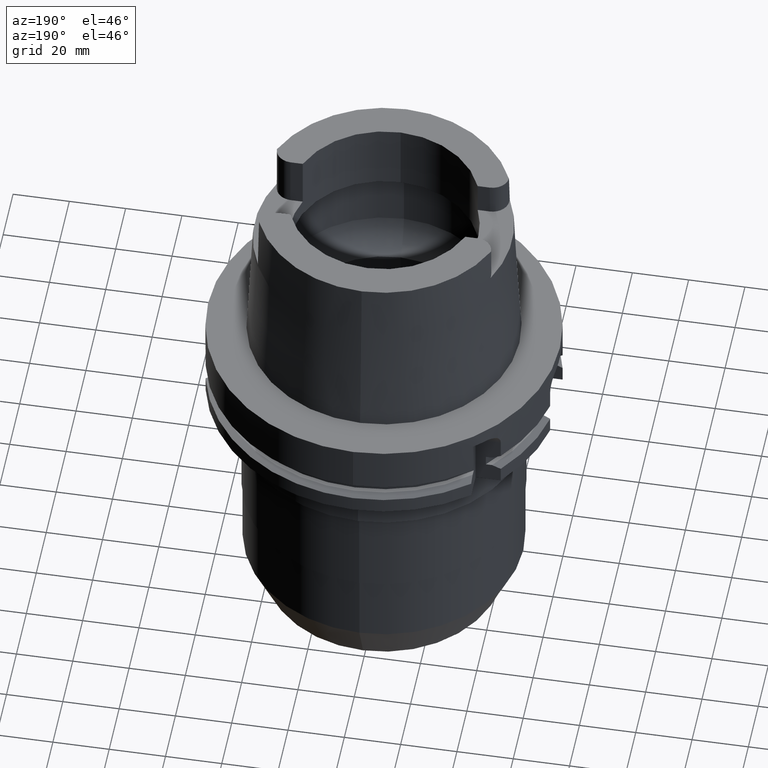
[diagram: clean part render]
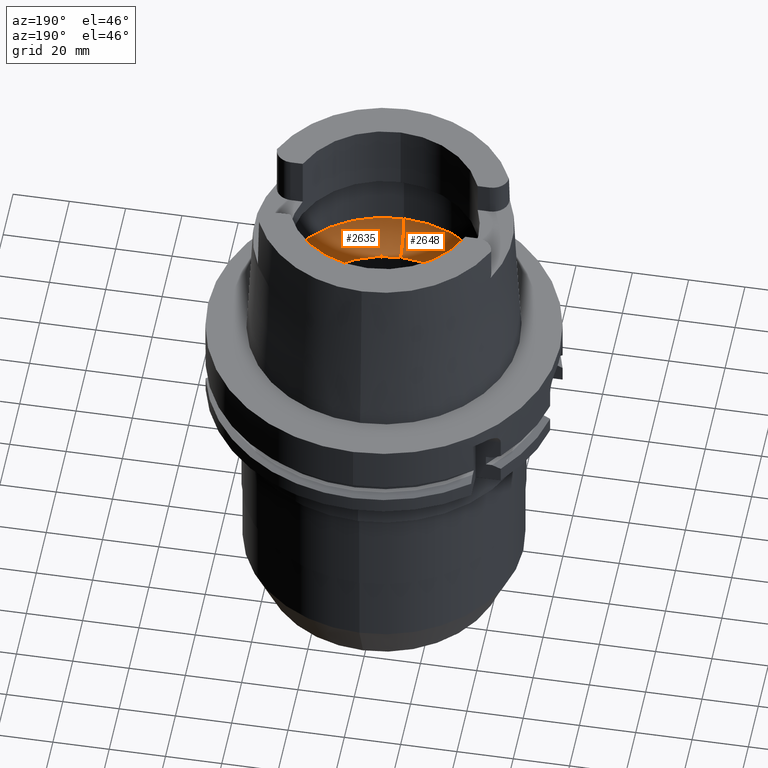
[diagram: same view with one multi-face feature highlighted, each face labeled with its STEP entity id]
A machine part, auxiliary view. The highlighted faces form ONE feature: a constant-radius fillet chain: 2 tangent blend faces with common blend radius 16 mm. The faces share edges in the B-rep.
Their STEP definitions:
[1] entity #2648 (Torus):
#459=CARTESIAN_POINT('',(0.E0,2.4E1,1.297439318958E1));
#460=DIRECTION('',(1.E0,0.E0,0.E0));
#461=DIRECTION('',(0.E0,5.937500000001E-1,-8.046495743489E-1));
#462=AXIS2_PLACEMENT_3D('',#459,#460,#461);
#483=CARTESIAN_POINT('',(0.E0,0.E0,9.999999999761E-2));
#484=DIRECTION('',(0.E0,0.E0,1.E0));
#485=DIRECTION('',(0.E0,1.E0,0.E0));
#486=AXIS2_PLACEMENT_3D('',#483,#484,#485);
#491=CARTESIAN_POINT('',(0.E0,-2.4E1,1.297439318958E1));
#492=DIRECTION('',(-1.E0,0.E0,0.E0));
#493=DIRECTION('',(0.E0,-5.937500000001E-1,-8.046495743489E-1));
#494=AXIS2_PLACEMENT_3D('',#491,#492,#493);
#499=CARTESIAN_POINT('',(0.E0,0.E0,1.297439318958E1));
#500=DIRECTION('',(0.E0,0.E0,-1.E0));
#501=DIRECTION('',(0.E0,-1.E0,0.E0));
#502=AXIS2_PLACEMENT_3D('',#499,#500,#501);
#2057=CARTESIAN_POINT('',(0.E0,4.E1,1.297439318958E1));
#2058=VERTEX_POINT('',#2057);
#2059=CARTESIAN_POINT('',(0.E0,-4.E1,1.297439318958E1));
#2060=VERTEX_POINT('',#2059);
#2061=CARTESIAN_POINT('',(0.E0,3.35E1,9.999999999761E-2));
#2062=VERTEX_POINT('',#2061);
#2063=CARTESIAN_POINT('',(0.E0,-3.35E1,9.999999999761E-2));
#2064=VERTEX_POINT('',#2063);
#2636=CARTESIAN_POINT('',(0.E0,0.E0,1.297439318958E1));
#2637=DIRECTION('',(0.E0,0.E0,-1.E0));
#2638=DIRECTION('',(0.E0,-1.E0,0.E0));
#2639=AXIS2_PLACEMENT_3D('',#2636,#2637,#2638);
#2640=TOROIDAL_SURFACE('',#2639,2.4E1,1.6E1);
#2641=ORIENTED_EDGE('',*,*,#2626,.F.);
#2643=ORIENTED_EDGE('',*,*,#2642,.T.);
#2644=ORIENTED_EDGE('',*,*,#2629,.T.);
#2645=ORIENTED_EDGE('',*,*,#2600,.T.);
#2646=EDGE_LOOP('',(#2641,#2643,#2644,#2645));
#2647=FACE_OUTER_BOUND('',#2646,.F.);
#463=CIRCLE('',#462,1.6E1);
#487=CIRCLE('',#486,3.35E1);
#495=CIRCLE('',#494,1.6E1);
#503=CIRCLE('',#502,4.E1);
#2600=EDGE_CURVE('',#2060,#2058,#503,.T.);
#2626=EDGE_CURVE('',#2062,#2058,#463,.T.);
#2629=EDGE_CURVE('',#2064,#2060,#495,.T.);
#2642=EDGE_CURVE('',#2062,#2064,#487,.T.);
#2648=ADVANCED_FACE('',(#2647),#2640,.F.);
[2] entity #2635 (Torus):
#459=CARTESIAN_POINT('',(0.E0,2.4E1,1.297439318958E1));
#460=DIRECTION('',(1.E0,0.E0,0.E0));
#461=DIRECTION('',(0.E0,5.937500000001E-1,-8.046495743489E-1));
#462=AXIS2_PLACEMENT_3D('',#459,#460,#461);
#467=CARTESIAN_POINT('',(0.E0,0.E0,1.297439318958E1));
#468=DIRECTION('',(0.E0,0.E0,-1.E0));
#469=DIRECTION('',(0.E0,1.E0,0.E0));
#470=AXIS2_PLACEMENT_3D('',#467,#468,#469);
#475=CARTESIAN_POINT('',(0.E0,0.E0,9.999999999761E-2));
#476=DIRECTION('',(0.E0,0.E0,1.E0));
#477=DIRECTION('',(0.E0,-1.E0,0.E0));
#478=AXIS2_PLACEMENT_3D('',#475,#476,#477);
#491=CARTESIAN_POINT('',(0.E0,-2.4E1,1.297439318958E1));
#492=DIRECTION('',(-1.E0,0.E0,0.E0));
#493=DIRECTION('',(0.E0,-5.937500000001E-1,-8.046495743489E-1));
#494=AXIS2_PLACEMENT_3D('',#491,#492,#493);
#2057=CARTESIAN_POINT('',(0.E0,4.E1,1.297439318958E1));
#2058=VERTEX_POINT('',#2057);
#2059=CARTESIAN_POINT('',(0.E0,-4.E1,1.297439318958E1));
#2060=VERTEX_POINT('',#2059);
#2061=CARTESIAN_POINT('',(0.E0,3.35E1,9.999999999761E-2));
#2062=VERTEX_POINT('',#2061);
#2063=CARTESIAN_POINT('',(0.E0,-3.35E1,9.999999999761E-2));
#2064=VERTEX_POINT('',#2063);
#2621=CARTESIAN_POINT('',(0.E0,0.E0,1.297439318958E1));
#2622=DIRECTION('',(0.E0,0.E0,-1.E0));
#2623=DIRECTION('',(0.E0,-1.E0,0.E0));
#2624=AXIS2_PLACEMENT_3D('',#2621,#2622,#2623);
#2625=TOROIDAL_SURFACE('',#2624,2.4E1,1.6E1);
#2627=ORIENTED_EDGE('',*,*,#2626,.T.);
#2628=ORIENTED_EDGE('',*,*,#2616,.T.);
#2630=ORIENTED_EDGE('',*,*,#2629,.F.);
#2632=ORIENTED_EDGE('',*,*,#2631,.T.);
#2633=EDGE_LOOP('',(#2627,#2628,#2630,#2632));
#2634=FACE_OUTER_BOUND('',#2633,.F.);
#463=CIRCLE('',#462,1.6E1);
#471=CIRCLE('',#470,4.E1);
#479=CIRCLE('',#478,3.35E1);
#495=CIRCLE('',#494,1.6E1);
#2616=EDGE_CURVE('',#2058,#2060,#471,.T.);
#2626=EDGE_CURVE('',#2062,#2058,#463,.T.);
#2629=EDGE_CURVE('',#2064,#2060,#495,.T.);
#2631=EDGE_CURVE('',#2064,#2062,#479,.T.);
#2635=ADVANCED_FACE('',(#2634),#2625,.F.);